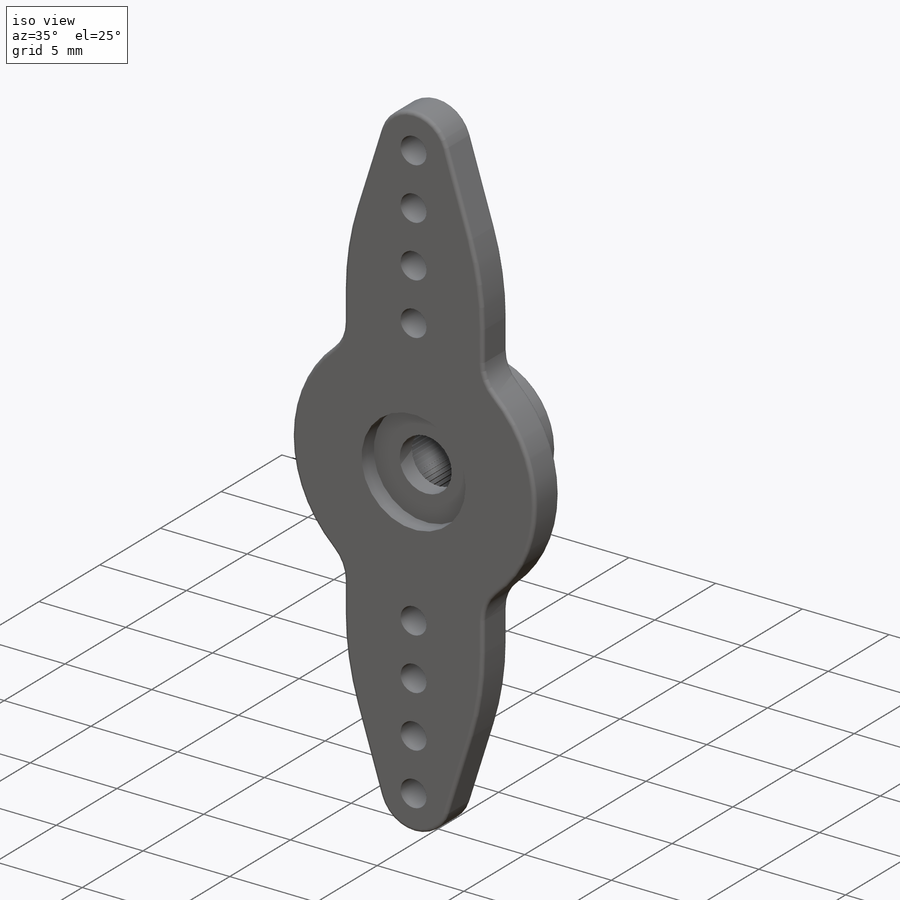
[diagram: iso view]
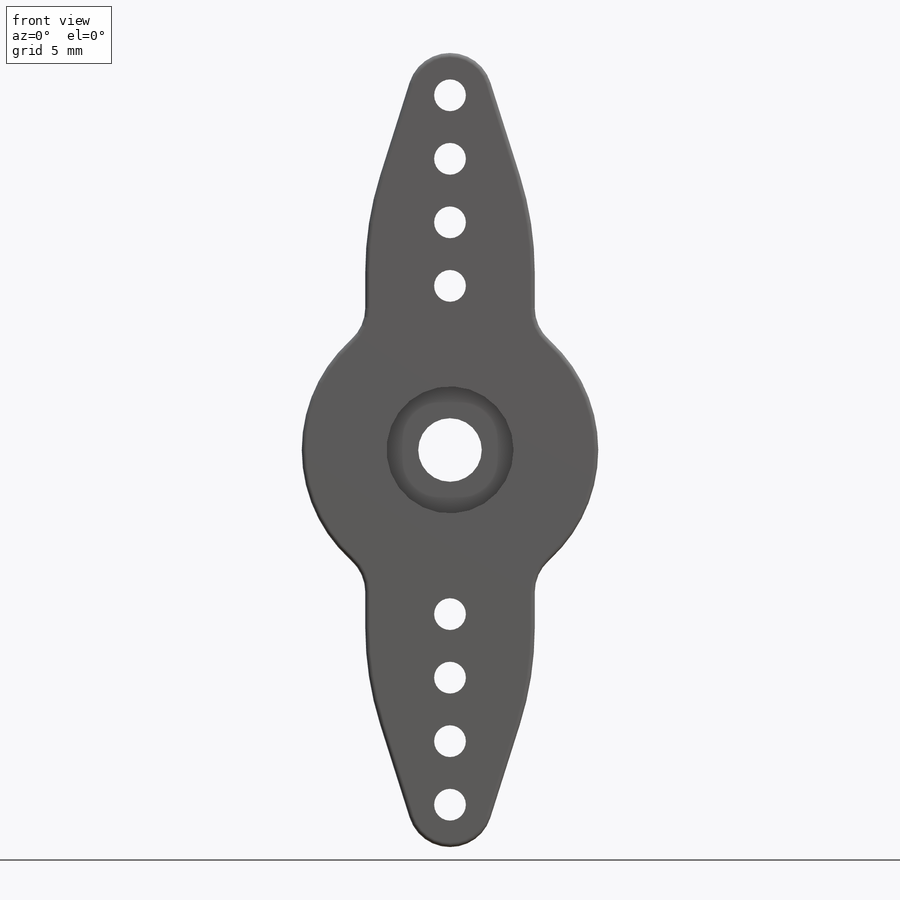
[diagram: front view]
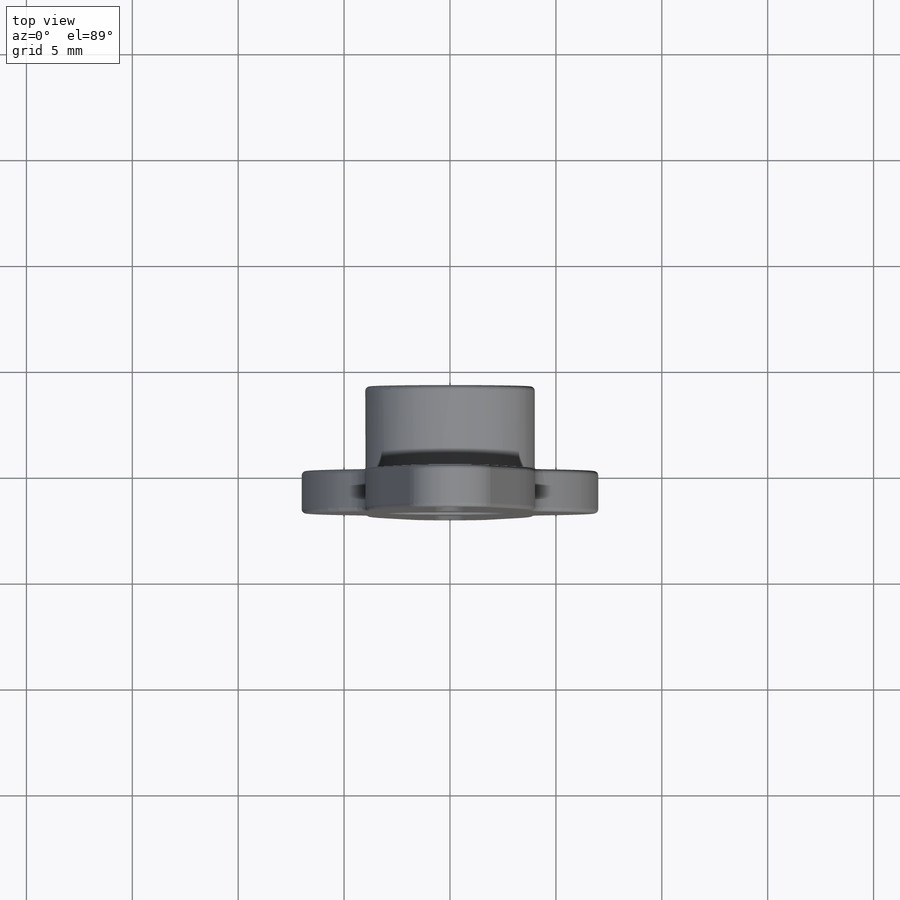
[diagram: top view]
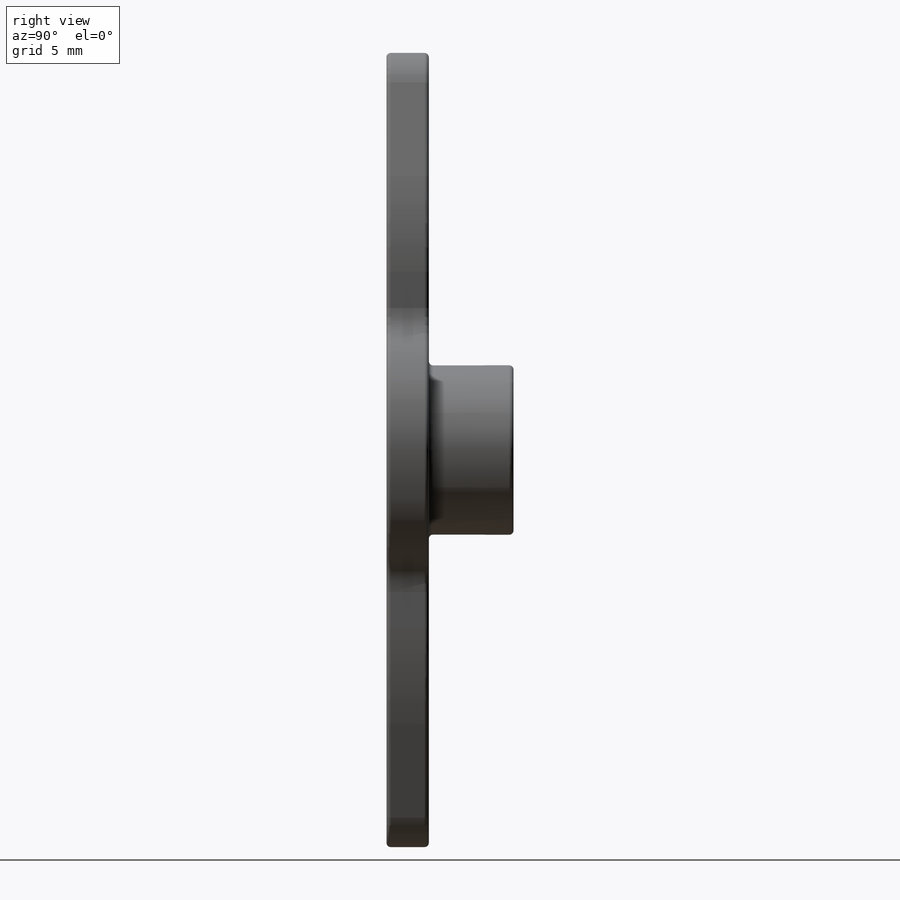
[diagram: right view]
SOLIDWORKS PART (.sldprt)
format: sldprt  version: not decoded by parser v0  size: 600,064 bytes
history: native  units: mm
features: sketch x5, plane x3, extrude x3, fillet x3, cut_extrude x2, pattern_circular x2, material x1 (+9 scaffold rows collapsed)
feature tree (28):
  scaffold x9  (default folders/planes/origin — collapsed)
  material  "Material <not specified>"
  plane  "Ön Düzlem"
  plane  "Üst Düzlem"
  plane  "Sağ Düzlem"
  sketch  "Sketch1"  dims[c1.D1=37.5mm c1.D2=14.0mm c1.D3=4.0mm c1.D5=3.0mm c1.D4=5.0mm c2.D5=6.0mm c2.D6=8.0mm]
  extrude  "Boss-Extrude1"  Depth=2mm
  fillet  "Fillet1"  Radius=15mm
  sketch  "Sketch2"  dims[D1=1.5mm D2=2.0mm D3=4.0]
  cut_extrude  "Cut-Extrude1"  [1 undecoded]
  pattern_circular  "CirPattern2"  Count=2 Angle=360deg
  fillet  "Fillet2"  Radius=2mm
  sketch  "Sketch3"  dims[D1=6.0mm]
  cut_extrude  "Cut-Extrude2"  Depth=1mm
  sketch  "Sketch4"  dims[D1=8.0mm D2=6.0mm]
  extrude  "Boss-Extrude2"  Depth=4mm
  sketch  "Sketch5"  dims[D1=0.05mm D2=0.5mm]
  extrude  "Boss-Extrude3"  [1 undecoded]
  pattern_circular  "CirPattern3"  Count=80 Angle=360deg
  fillet  "Fillet3"  Radius=0.2mm
decode coverage: 13 of 15 modeling features carry decoded parameters
note: 2 parameter values undecoded
note: suppression state not decoded; provenance and decode notes live in map.json
